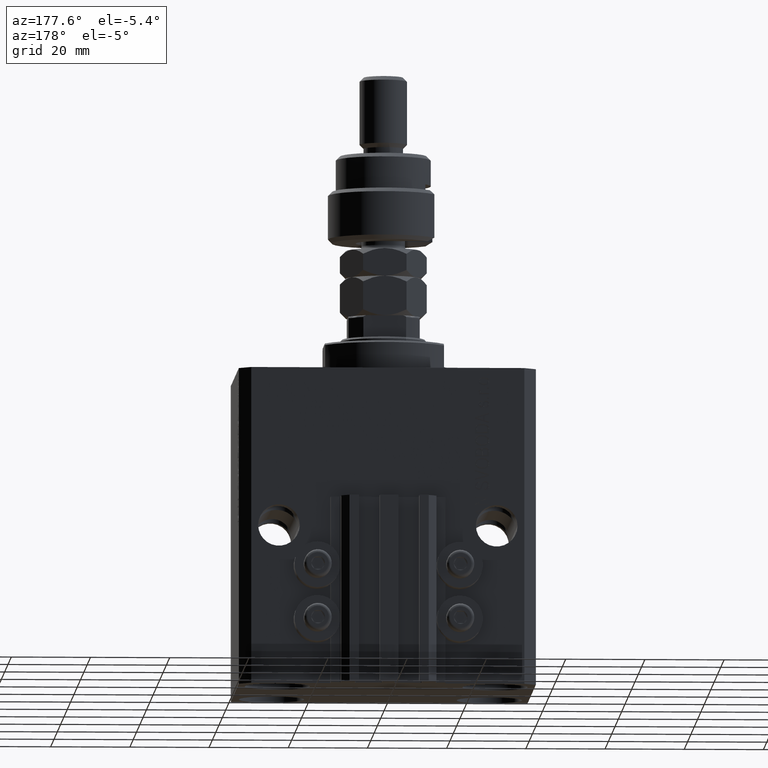
[diagram: clean part render]
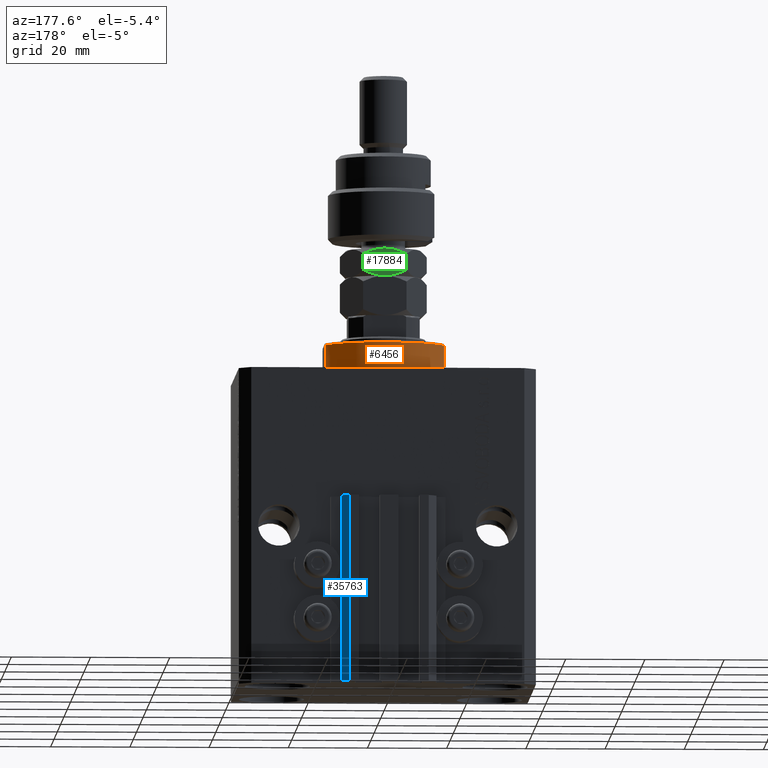
[diagram: same view with three faces highlighted in distinct colors, each labeled with its STEP entity id]
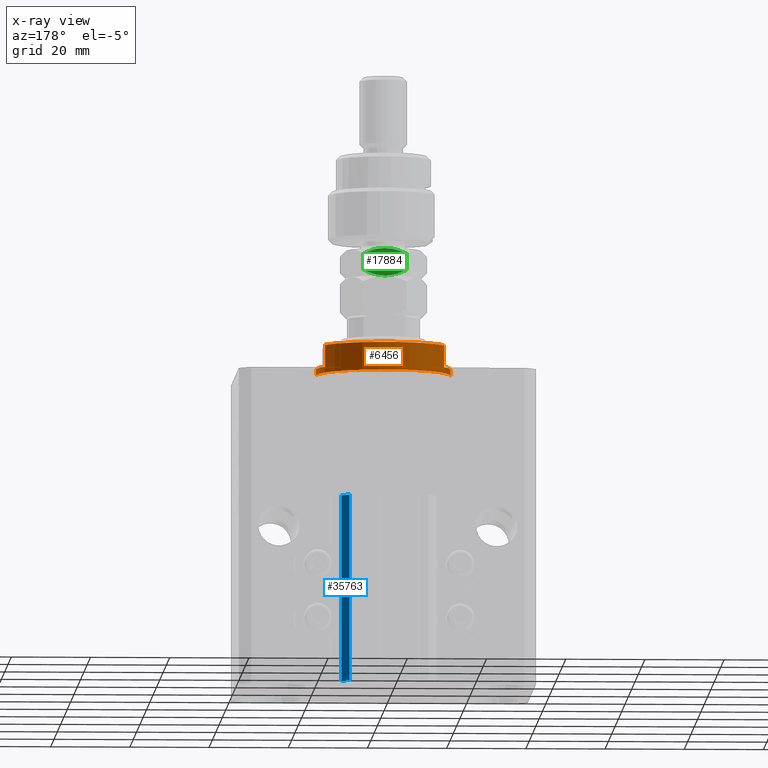
[diagram: x-ray of the same camera — body ghosted, the three highlighted faces saturated]
A machine part, auxiliary view with three faces highlighted in distinct colors.
The next image is the same camera in x-ray (body ghosted, the three faces saturated) — at least one of them is partly hidden behind the body in this view.
Their STEP definitions:

[orange] entity #6456 — the highlighted cylindrical surface (partial cylindrical patch) has radius 17 mm, axis along (0, 0, -1).
#426 = ORIENTED_EDGE ( 'NONE', *, *, #40695, .F. ) ;
#938 = EDGE_CURVE ( 'NONE', #40947, #39394, #43040, .T. ) ;
#1913 = CARTESIAN_POINT ( 'NONE',  ( 0.000000000000000000, 0.000000000000000000, -2.000000000000000000 ) ) ;
#2305 = LINE ( 'NONE', #47739, #20967 ) ;
#3598 = DIRECTION ( 'NONE',  ( -0.000000000000000000, -0.000000000000000000, 1.000000000000000000 ) ) ;
#4839 = EDGE_CURVE ( 'NONE', #24207, #44921, #17517, .T. ) ;
#5089 = DIRECTION ( 'NONE',  ( -0.000000000000000000, -0.000000000000000000, 1.000000000000000000 ) ) ;
#5426 = DIRECTION ( 'NONE',  ( -1.000000000000000000, 0.000000000000000000, 0.000000000000000000 ) ) ;
#5556 = EDGE_LOOP ( 'NONE', ( #426, #9423, #25942, #35834, #47242, #46102, #32484, #45956 ) ) ;
#6456 = ADVANCED_FACE ( 'NONE', ( #34188 ), #18864, .T. ) ;
#6462 = VECTOR ( 'NONE', #27548, 1000.000000000000000 ) ;
#7607 = CARTESIAN_POINT ( 'NONE',  ( -17.00000000000000000, 2.081899558550500280E-15, -8.000000000000000000 ) ) ;
#8665 = CARTESIAN_POINT ( 'NONE',  ( 14.99999999999999645, 8.000000000000003553, -2.000000000000000000 ) ) ;
#9025 = EDGE_CURVE ( 'NONE', #41846, #47507, #45267, .T. ) ;
#9423 = ORIENTED_EDGE ( 'NONE', *, *, #9025, .T. ) ;
#9685 = DIRECTION ( 'NONE',  ( 1.000000000000000000, 0.000000000000000000, 0.000000000000000000 ) ) ;
#10256 = CIRCLE ( 'NONE', #30293, 17.00000000000000000 ) ;
#11346 = DIRECTION ( 'NONE',  ( -0.000000000000000000, -0.000000000000000000, 1.000000000000000000 ) ) ;
#12766 = CARTESIAN_POINT ( 'NONE',  ( -17.00000000000000000, 2.081899558550500280E-15, -0.5000000000000004441 ) ) ;
#12930 = CARTESIAN_POINT ( 'NONE',  ( 15.00000000000000000, 8.000000000000001776, -7.500000000000007105 ) ) ;
#14212 = VERTEX_POINT ( 'NONE', #23288 ) ;
#14277 = AXIS2_PLACEMENT_3D ( 'NONE', #1913, #40301, #5426 ) ;
#14956 = DIRECTION ( 'NONE',  ( 0.000000000000000000, 0.000000000000000000, -1.000000000000000000 ) ) ;
#16198 = CIRCLE ( 'NONE', #33829, 17.00000000000000000 ) ;
#16903 = EDGE_CURVE ( 'NONE', #47507, #28093, #10256, .T. ) ;
#17517 = CIRCLE ( 'NONE', #14277, 17.00000000000000000 ) ;
#17541 = DIRECTION ( 'NONE',  ( -1.000000000000000000, 0.000000000000000000, 0.000000000000000000 ) ) ;
#18358 = DIRECTION ( 'NONE',  ( 1.000000000000000000, 0.000000000000000000, 0.000000000000000000 ) ) ;
#18864 = CYLINDRICAL_SURFACE ( 'NONE', #28029, 17.00000000000000000 ) ;
#20647 = EDGE_CURVE ( 'NONE', #39394, #14212, #34680, .T. ) ;
#20967 = VECTOR ( 'NONE', #5089, 1000.000000000000000 ) ;
#21364 = AXIS2_PLACEMENT_3D ( 'NONE', #36638, #24609, #17541 ) ;
#22149 = VECTOR ( 'NONE', #3598, 1000.000000000000000 ) ;
#22644 = CARTESIAN_POINT ( 'NONE',  ( 0.000000000000000000, 0.000000000000000000, -8.000000000000000000 ) ) ;
#22787 = EDGE_CURVE ( 'NONE', #40947, #24207, #35321, .T. ) ;
#23288 = CARTESIAN_POINT ( 'NONE',  ( -14.99999999999999645, 8.000000000000003553, -2.000000000000000000 ) ) ;
#24207 = VERTEX_POINT ( 'NONE', #8665 ) ;
#24497 = CARTESIAN_POINT ( 'NONE',  ( -17.00000000000000000, 2.081899558550500280E-15, -2.000000000000000000 ) ) ;
#24609 = DIRECTION ( 'NONE',  ( 0.000000000000000000, 0.000000000000000000, 1.000000000000000000 ) ) ;
#25942 = ORIENTED_EDGE ( 'NONE', *, *, #16903, .T. ) ;
#27548 = DIRECTION ( 'NONE',  ( -0.000000000000000000, -0.000000000000000000, 1.000000000000000000 ) ) ;
#27799 = CARTESIAN_POINT ( 'NONE',  ( 15.00000000000000000, 8.000000000000001776, -8.000000000000000000 ) ) ;
#28029 = AXIS2_PLACEMENT_3D ( 'NONE', #22644, #11346, #18358 ) ;
#28093 = VERTEX_POINT ( 'NONE', #39953 ) ;
#28767 = DIRECTION ( 'NONE',  ( -0.000000000000000000, -0.000000000000000000, -1.000000000000000000 ) ) ;
#29535 = CARTESIAN_POINT ( 'NONE',  ( 0.000000000000000000, 0.000000000000000000, -2.000000000000000000 ) ) ;
#30293 = AXIS2_PLACEMENT_3D ( 'NONE', #47841, #28767, #9685 ) ;
#32484 = ORIENTED_EDGE ( 'NONE', *, *, #938, .T. ) ;
#33829 = AXIS2_PLACEMENT_3D ( 'NONE', #29535, #14956, #45608 ) ;
#34060 = CARTESIAN_POINT ( 'NONE',  ( 17.00000000000000000, 0.000000000000000000, -2.000000000000000000 ) ) ;
#34188 = FACE_OUTER_BOUND ( 'NONE', #5556, .T. ) ;
#34680 = LINE ( 'NONE', #45994, #41688 ) ;
#35321 = LINE ( 'NONE', #27799, #6462 ) ;
#35834 = ORIENTED_EDGE ( 'NONE', *, *, #39055, .F. ) ;
#36638 = CARTESIAN_POINT ( 'NONE',  ( 0.000000000000000000, 0.000000000000000000, -7.500000000000007105 ) ) ;
#39055 = EDGE_CURVE ( 'NONE', #44921, #28093, #2305, .T. ) ;
#39394 = VERTEX_POINT ( 'NONE', #47864 ) ;
#39953 = CARTESIAN_POINT ( 'NONE',  ( 17.00000000000000000, 0.000000000000000000, -0.5000000000000004441 ) ) ;
#40301 = DIRECTION ( 'NONE',  ( 0.000000000000000000, 0.000000000000000000, -1.000000000000000000 ) ) ;
#40695 = EDGE_CURVE ( 'NONE', #41846, #14212, #16198, .T. ) ;
#40947 = VERTEX_POINT ( 'NONE', #12930 ) ;
#41688 = VECTOR ( 'NONE', #42221, 1000.000000000000000 ) ;
#41846 = VERTEX_POINT ( 'NONE', #24497 ) ;
#42221 = DIRECTION ( 'NONE',  ( -0.000000000000000000, -0.000000000000000000, 1.000000000000000000 ) ) ;
#43040 = CIRCLE ( 'NONE', #21364, 17.00000000000000000 ) ;
#44921 = VERTEX_POINT ( 'NONE', #34060 ) ;
#45267 = LINE ( 'NONE', #7607, #22149 ) ;
#45608 = DIRECTION ( 'NONE',  ( -1.000000000000000000, 0.000000000000000000, 0.000000000000000000 ) ) ;
#45956 = ORIENTED_EDGE ( 'NONE', *, *, #20647, .T. ) ;
#45994 = CARTESIAN_POINT ( 'NONE',  ( -15.00000000000000000, 8.000000000000001776, -8.000000000000000000 ) ) ;
#46102 = ORIENTED_EDGE ( 'NONE', *, *, #22787, .F. ) ;
#47242 = ORIENTED_EDGE ( 'NONE', *, *, #4839, .F. ) ;
#47507 = VERTEX_POINT ( 'NONE', #12766 ) ;
#47739 = CARTESIAN_POINT ( 'NONE',  ( 17.00000000000000000, 0.000000000000000000, -8.000000000000000000 ) ) ;
#47841 = CARTESIAN_POINT ( 'NONE',  ( 0.000000000000000000, 0.000000000000000000, -0.5000000000000004441 ) ) ;
#47864 = CARTESIAN_POINT ( 'NONE',  ( -15.00000000000000000, 8.000000000000001776, -7.500000000000007105 ) ) ;

[blue] entity #35763 — the highlighted planar face has unit normal (0.7071, 0.7071, 0).
#96 = AXIS2_PLACEMENT_3D ( 'NONE', #26761, #38309, #41835 ) ;
#144 = VERTEX_POINT ( 'NONE', #41380 ) ;
#1062 = DIRECTION ( 'NONE',  ( 0.000000000000000000, 0.000000000000000000, 1.000000000000000000 ) ) ;
#2670 = CARTESIAN_POINT ( 'NONE',  ( 9.999999999999998224, 35.50000000000001421, -80.00000000000000000 ) ) ;
#3679 = FACE_OUTER_BOUND ( 'NONE', #36547, .T. ) ;
#4175 = VECTOR ( 'NONE', #39717, 1000.000000000000114 ) ;
#4486 = VERTEX_POINT ( 'NONE', #30108 ) ;
#4512 = CARTESIAN_POINT ( 'NONE',  ( 12.00000000000000000, 33.50000000000001421, -33.00000000000000000 ) ) ;
#6333 = VERTEX_POINT ( 'NONE', #17618 ) ;
#7680 = EDGE_CURVE ( 'NONE', #28833, #6333, #38894, .T. ) ;
#17089 = LINE ( 'NONE', #42986, #35922 ) ;
#17120 = EDGE_CURVE ( 'NONE', #144, #28833, #17089, .T. ) ;
#17618 = CARTESIAN_POINT ( 'NONE',  ( 9.999999999999998224, 35.50000000000001421, -33.00000000000000000 ) ) ;
#20382 = CARTESIAN_POINT ( 'NONE',  ( 12.00000000000000000, 33.50000000000001421, -80.00000000000000000 ) ) ;
#21533 = ORIENTED_EDGE ( 'NONE', *, *, #29159, .T. ) ;
#26510 = PLANE ( 'NONE',  #96 ) ;
#26761 = CARTESIAN_POINT ( 'NONE',  ( 12.00000000000000000, 33.50000000000001421, -80.00000000000000000 ) ) ;
#28833 = VERTEX_POINT ( 'NONE', #48520 ) ;
#29159 = EDGE_CURVE ( 'NONE', #144, #4486, #47009, .T. ) ;
#30108 = CARTESIAN_POINT ( 'NONE',  ( 9.999999999999998224, 35.50000000000001421, -80.00000000000000000 ) ) ;
#33521 = DIRECTION ( 'NONE',  ( 0.000000000000000000, 0.000000000000000000, 1.000000000000000000 ) ) ;
#33580 = ORIENTED_EDGE ( 'NONE', *, *, #43241, .T. ) ;
#34485 = VECTOR ( 'NONE', #35122, 1000.000000000000114 ) ;
#34562 = ORIENTED_EDGE ( 'NONE', *, *, #7680, .F. ) ;
#34733 = VECTOR ( 'NONE', #33521, 1000.000000000000000 ) ;
#35122 = DIRECTION ( 'NONE',  ( -0.7071067811865474617, 0.7071067811865474617, 0.000000000000000000 ) ) ;
#35763 = ADVANCED_FACE ( 'NONE', ( #3679 ), #26510, .T. ) ;
#35922 = VECTOR ( 'NONE', #1062, 1000.000000000000000 ) ;
#36547 = EDGE_LOOP ( 'NONE', ( #34562, #45882, #21533, #33580 ) ) ;
#38309 = DIRECTION ( 'NONE',  ( 0.7071067811865475727, 0.7071067811865475727, -0.000000000000000000 ) ) ;
#38894 = LINE ( 'NONE', #4512, #34485 ) ;
#39717 = DIRECTION ( 'NONE',  ( -0.7071067811865474617, 0.7071067811865474617, 0.000000000000000000 ) ) ;
#41313 = LINE ( 'NONE', #2670, #34733 ) ;
#41380 = CARTESIAN_POINT ( 'NONE',  ( 12.00000000000000000, 33.50000000000001421, -80.00000000000000000 ) ) ;
#41835 = DIRECTION ( 'NONE',  ( -0.7071067811865474617, 0.7071067811865474617, 0.000000000000000000 ) ) ;
#42986 = CARTESIAN_POINT ( 'NONE',  ( 12.00000000000000000, 33.50000000000001421, -80.00000000000000000 ) ) ;
#43241 = EDGE_CURVE ( 'NONE', #4486, #6333, #41313, .T. ) ;
#45882 = ORIENTED_EDGE ( 'NONE', *, *, #17120, .F. ) ;
#47009 = LINE ( 'NONE', #20382, #4175 ) ;
#48520 = CARTESIAN_POINT ( 'NONE',  ( 12.00000000000000000, 33.50000000000001421, -33.00000000000000000 ) ) ;

[green] entity #17884 — the highlighted planar face has unit normal (0, -1, 0).
#135 = CARTESIAN_POINT ( 'NONE',  ( -3.412354640325339130E-17, 10.96965511460288667, 17.00000000000000000 ) ) ;
#1361 = B_SPLINE_CURVE_WITH_KNOTS ( 'NONE', 3,
 ( #35205, #26679, #4346, #31445, #15386, #26930, #38479, #31195 ),
 .UNSPECIFIED., .F., .F.,
 ( 4, 2, 2, 4 ),
 ( 2.544312669948822529E-07, 0.002843014744722347203, 0.004264394901450023478, 0.005685775058177699320 ),
 .UNSPECIFIED. ) ;
#1634 = CARTESIAN_POINT ( 'NONE',  ( -3.111617971331823274, 9.173161641239182984, 10.14587561577547348 ) ) ;
#2289 = AXIS2_PLACEMENT_3D ( 'NONE', #135, #41546, #37274 ) ;
#3149 = FACE_OUTER_BOUND ( 'NONE', #31291, .T. ) ;
#3349 = CARTESIAN_POINT ( 'NONE',  ( -4.749999999999998224, 8.227241335952161450, 17.00000000000000000 ) ) ;
#3979 = CARTESIAN_POINT ( 'NONE',  ( 1.530326643359561748E-18, 10.96965511460288667, 11.46965511460288489 ) ) ;
#4346 = CARTESIAN_POINT ( 'NONE',  ( -7.993405681187612188, 6.354660192827332743, 10.67417488247127721 ) ) ;
#4405 = CARTESIAN_POINT ( 'NONE',  ( -0.7440058743609622161, 10.54010312276192174, 11.04010312276182937 ) ) ;
#4548 = VECTOR ( 'NONE', #47612, 1000.000000000000000 ) ;
#4701 = LINE ( 'NONE', #4955, #4548 ) ;
#4955 = CARTESIAN_POINT ( 'NONE',  ( -3.412354640325339130E-17, 10.96965511460288667, 17.00000000000000000 ) ) ;
#5872 = ORIENTED_EDGE ( 'NONE', *, *, #39856, .F. ) ;
#6469 = CARTESIAN_POINT ( 'NONE',  ( -0.7448681452486599630, 10.53960529043279415, 15.96039470956720585 ) ) ;
#7198 = CARTESIAN_POINT ( 'NONE',  ( -7.990178599141542826, 6.356523349515328825, 16.32836303054872928 ) ) ;
#8815 = CARTESIAN_POINT ( 'NONE',  ( -9.499999999999998224, 5.484827557301440670, 15.53034488539711688 ) ) ;
#8933 = VERTEX_POINT ( 'NONE', #12665 ) ;
#9240 = B_SPLINE_CURVE_WITH_KNOTS ( 'NONE', 3,
 ( #15934, #35265, #1634, #39036, #4405, #46582 ),
 .UNSPECIFIED., .F., .F.,
 ( 4, 2, 4 ),
 ( 0.005685775058177699320, 0.008508623398180328867, 0.01133147173818295841 ),
 .UNSPECIFIED. ) ;
#10722 = CARTESIAN_POINT ( 'NONE',  ( -4.333978297711725602, 8.467431577757023931, 17.00000000000000711 ) ) ;
#10970 = CARTESIAN_POINT ( 'NONE',  ( -6.824709270553258672E-17, 10.96965511460288667, 15.53034488539711511 ) ) ;
#11727 = VERTEX_POINT ( 'NONE', #48108 ) ;
#11916 = EDGE_CURVE ( 'NONE', #8933, #29861, #9240, .T. ) ;
#11953 = CARTESIAN_POINT ( 'NONE',  ( -4.749999999999998224, 8.227241335952161450, 17.00000000000000000 ) ) ;
#12157 = VECTOR ( 'NONE', #43867, 1000.000000000000000 ) ;
#12665 = CARTESIAN_POINT ( 'NONE',  ( -4.749999999999993783, 8.227241335952166779, 10.00000000000000000 ) ) ;
#13269 = CARTESIAN_POINT ( 'NONE',  ( -6.824709270553258672E-17, 10.96965511460288667, 15.53034488539711511 ) ) ;
#13559 = EDGE_CURVE ( 'NONE', #32754, #29861, #4701, .T. ) ;
#15386 = CARTESIAN_POINT ( 'NONE',  ( -6.408273631871768572, 7.269836608200939132, 10.17974185471203263 ) ) ;
#15934 = CARTESIAN_POINT ( 'NONE',  ( -4.749999999999993783, 8.227241335952166779, 10.00000000000000000 ) ) ;
#17884 = ADVANCED_FACE ( 'NONE', ( #3149 ), #46078, .F. ) ;
#20688 = VERTEX_POINT ( 'NONE', #8815 ) ;
#22686 = B_SPLINE_CURVE_WITH_KNOTS ( 'NONE', 3,
 ( #11953, #23254, #35043, #7198, #34052, #34796 ),
 .UNSPECIFIED., .F., .F.,
 ( 4, 2, 4 ),
 ( 0.005685775058177692382, 0.008508623398180323663, 0.01133147173818295494 ),
 .UNSPECIFIED. ) ;
#22924 = VERTEX_POINT ( 'NONE', #3349 ) ;
#23254 = CARTESIAN_POINT ( 'NONE',  ( -5.576215397865950330, 7.750225653585641972, 17.00000000000000000 ) ) ;
#25543 = CARTESIAN_POINT ( 'NONE',  ( -1.506594318812381372, 10.09982247907699815, 16.32582511752872634 ) ) ;
#26530 = CARTESIAN_POINT ( 'NONE',  ( -3.911732050025008789, 8.711215562523259237, 16.96229423126699487 ) ) ;
#26679 = CARTESIAN_POINT ( 'NONE',  ( -8.755131854751336817, 5.914877381471534079, 11.03960529043279415 ) ) ;
#26930 = CARTESIAN_POINT ( 'NONE',  ( -5.588267949974984106, 7.743267109381070767, 10.03770576873299980 ) ) ;
#29015 = ORIENTED_EDGE ( 'NONE', *, *, #11916, .F. ) ;
#29861 = VERTEX_POINT ( 'NONE', #3979 ) ;
#30050 = CARTESIAN_POINT ( 'NONE',  ( -3.091726368128225211, 9.184646063703389984, 16.82025814528796204 ) ) ;
#31195 = CARTESIAN_POINT ( 'NONE',  ( -4.749999999999993783, 8.227241335952166779, 10.00000000000000000 ) ) ;
#31291 = EDGE_LOOP ( 'NONE', ( #38204, #5872, #38369, #44328, #43105, #29015 ) ) ;
#31445 = CARTESIAN_POINT ( 'NONE',  ( -6.809745054052669389, 7.038046974532854883, 10.28346213843118839 ) ) ;
#31795 = EDGE_CURVE ( 'NONE', #32754, #22924, #47591, .T. ) ;
#32754 = VERTEX_POINT ( 'NONE', #13269 ) ;
#33560 = CARTESIAN_POINT ( 'NONE',  ( -2.690254945947326171, 9.416435697371476010, 16.71653786156880983 ) ) ;
#33892 = EDGE_CURVE ( 'NONE', #11727, #8933, #1361, .T. ) ;
#34052 = CARTESIAN_POINT ( 'NONE',  ( -8.755994125639032788, 5.914379549142407377, 15.95989687723817241 ) ) ;
#34061 = CARTESIAN_POINT ( 'NONE',  ( -4.749999999999998224, 8.227241335952161450, 17.00000000000000000 ) ) ;
#34796 = CARTESIAN_POINT ( 'NONE',  ( -9.499999999999998224, 5.484827557301440670, 15.53034488539711688 ) ) ;
#35043 = CARTESIAN_POINT ( 'NONE',  ( -6.388382028668172730, 7.281321030665148797, 16.85412438422453008 ) ) ;
#35205 = CARTESIAN_POINT ( 'NONE',  ( -9.499999999999998224, 5.484827557301440670, 11.46965511460288312 ) ) ;
#35265 = CARTESIAN_POINT ( 'NONE',  ( -3.923784602134042565, 8.704257018318687145, 10.00000000000000000 ) ) ;
#35828 = CARTESIAN_POINT ( 'NONE',  ( -9.499999999999998224, 5.484827557301440670, 17.00000000000000000 ) ) ;
#36829 = EDGE_CURVE ( 'NONE', #22924, #20688, #22686, .T. ) ;
#36990 = LINE ( 'NONE', #35828, #12157 ) ;
#37274 = DIRECTION ( 'NONE',  ( 0.8660254037844385966, 0.5000000000000001110, 0.000000000000000000 ) ) ;
#38204 = ORIENTED_EDGE ( 'NONE', *, *, #33892, .F. ) ;
#38369 = ORIENTED_EDGE ( 'NONE', *, *, #36829, .F. ) ;
#38479 = CARTESIAN_POINT ( 'NONE',  ( -5.166021702288267292, 7.987051094147307850, 9.999999999999998224 ) ) ;
#39036 = CARTESIAN_POINT ( 'NONE',  ( -1.509821400858455398, 10.09795932238900029, 10.67163696945126716 ) ) ;
#39856 = EDGE_CURVE ( 'NONE', #20688, #11727, #36990, .T. ) ;
#41546 = DIRECTION ( 'NONE',  ( 0.5000000000000001110, -0.8660254037844385966, 0.000000000000000000 ) ) ;
#43105 = ORIENTED_EDGE ( 'NONE', *, *, #13559, .T. ) ;
#43867 = DIRECTION ( 'NONE',  ( -0.000000000000000000, -0.000000000000000000, -1.000000000000000000 ) ) ;
#44328 = ORIENTED_EDGE ( 'NONE', *, *, #31795, .F. ) ;
#46078 = PLANE ( 'NONE',  #2289 ) ;
#46582 = CARTESIAN_POINT ( 'NONE',  ( 1.530326643359561748E-18, 10.96965511460288667, 11.46965511460288489 ) ) ;
#47591 = B_SPLINE_CURVE_WITH_KNOTS ( 'NONE', 3,
 ( #10970, #6469, #25543, #33560, #30050, #26530, #10722, #34061 ),
 .UNSPECIFIED., .F., .F.,
 ( 4, 2, 2, 4 ),
 ( 2.544312669947215284E-07, 0.002843014744722342866, 0.004264394901450018274, 0.005685775058177692382 ),
 .UNSPECIFIED. ) ;
#47612 = DIRECTION ( 'NONE',  ( -0.000000000000000000, -0.000000000000000000, -1.000000000000000000 ) ) ;
#48108 = CARTESIAN_POINT ( 'NONE',  ( -9.499999999999998224, 5.484827557301440670, 11.46965511460288312 ) ) ;